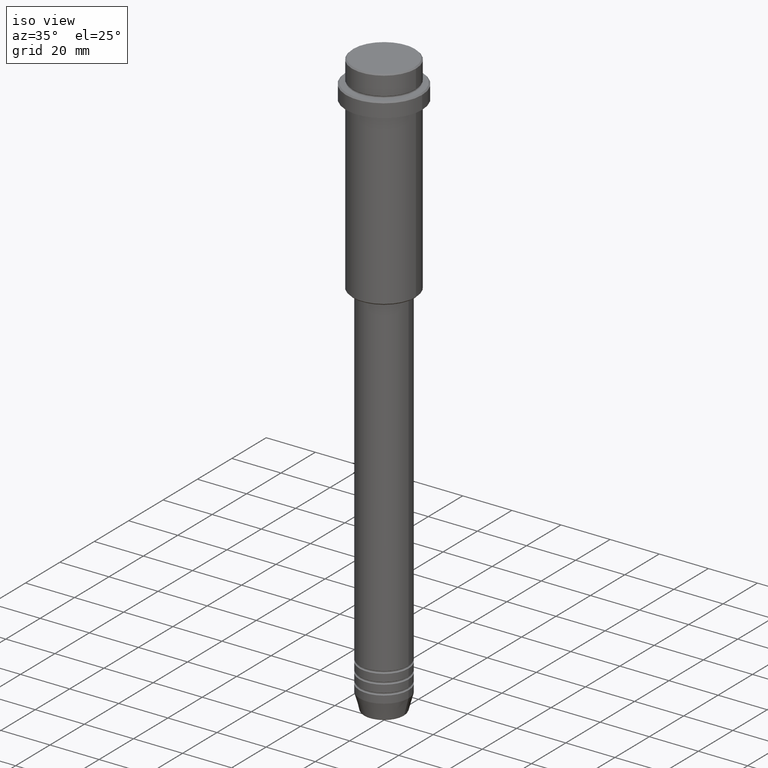
[diagram: clean part render]
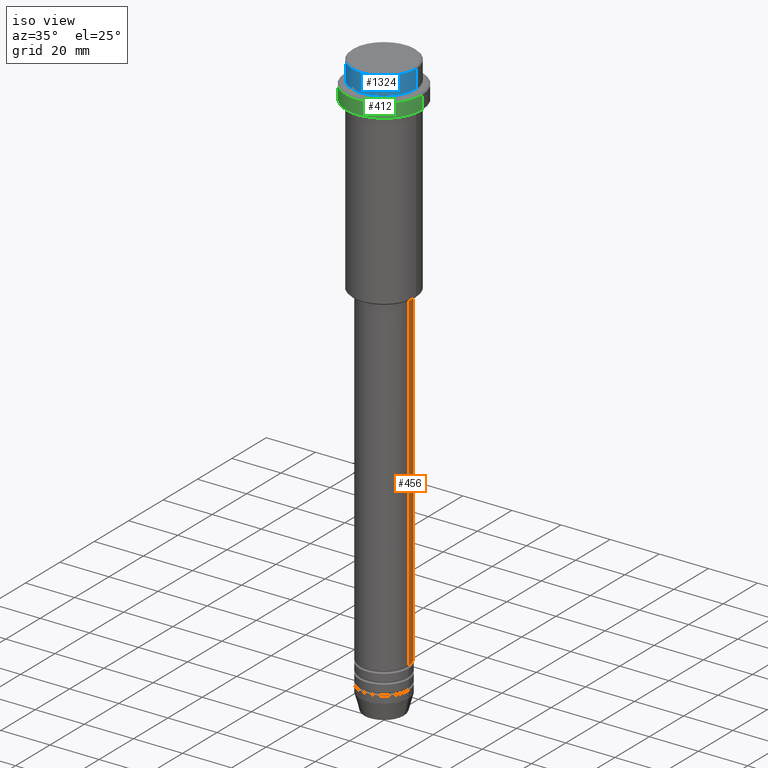
[diagram: same view with three faces highlighted in distinct colors, each labeled with its STEP entity id]
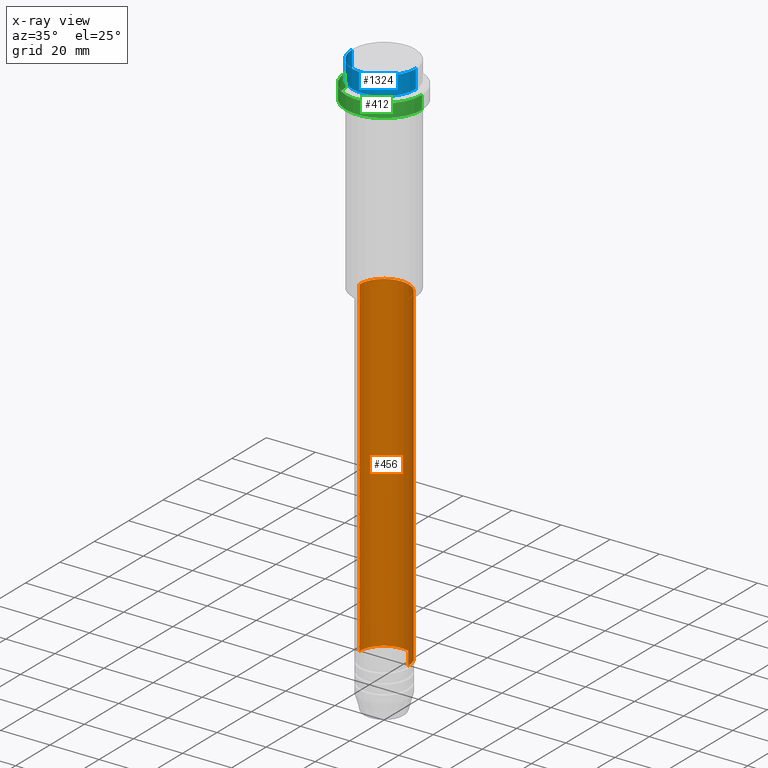
[diagram: x-ray of the same camera — body ghosted, the three highlighted faces saturated]
A machine part, iso view with three faces highlighted in distinct colors.
The next image is the same camera in x-ray (body ghosted, the three faces saturated) — at least one of them is partly hidden behind the body in this view.
Their STEP definitions:

[orange] entity #456 — the highlighted cylindrical surface (edge-blend (fillet) strip) has radius 10 mm, axis along (-0, -0, 1).
#3 = CARTESIAN_POINT ( 'NONE',  ( 0.000000000000000000, 0.000000000000000000, 0.000000000000000000 ) ) ;
#43 = AXIS2_PLACEMENT_3D ( 'NONE', #303, #1411, #652 ) ;
#77 = CARTESIAN_POINT ( 'NONE',  ( 10.00000000000000178, 0.000000000000000000, -86.00000000000000000 ) ) ;
#181 = AXIS2_PLACEMENT_3D ( 'NONE', #592, #1271, #496 ) ;
#183 = LINE ( 'NONE', #1033, #1146 ) ;
#211 = CARTESIAN_POINT ( 'NONE',  ( -10.00000000000000178, 1.224646799147353454E-15, 0.000000000000000000 ) ) ;
#229 = AXIS2_PLACEMENT_3D ( 'NONE', #3, #425, #1312 ) ;
#303 = CARTESIAN_POINT ( 'NONE',  ( 0.000000000000000000, 0.000000000000000000, -220.9999999999998863 ) ) ;
#325 = EDGE_LOOP ( 'NONE', ( #1345, #423, #1259, #827 ) ) ;
#350 = EDGE_CURVE ( 'NONE', #494, #902, #1047, .T. ) ;
#354 = CIRCLE ( 'NONE', #181, 10.00000000000000178 ) ;
#362 = DIRECTION ( 'NONE',  ( -0.000000000000000000, -0.000000000000000000, 1.000000000000000000 ) ) ;
#423 = ORIENTED_EDGE ( 'NONE', *, *, #1233, .T. ) ;
#425 = DIRECTION ( 'NONE',  ( -0.000000000000000000, -0.000000000000000000, 1.000000000000000000 ) ) ;
#456 = ADVANCED_FACE ( 'NONE', ( #752 ), #977, .T. ) ;
#484 = CARTESIAN_POINT ( 'NONE',  ( -10.00000000000000000, 1.224646799147353256E-15, -220.9999999999998863 ) ) ;
#494 = VERTEX_POINT ( 'NONE', #535 ) ;
#496 = DIRECTION ( 'NONE',  ( 1.000000000000000000, 0.000000000000000000, 0.000000000000000000 ) ) ;
#535 = CARTESIAN_POINT ( 'NONE',  ( 10.00000000000000000, 0.000000000000000000, -220.9999999999998863 ) ) ;
#592 = CARTESIAN_POINT ( 'NONE',  ( 0.000000000000000000, 0.000000000000000000, -86.00000000000000000 ) ) ;
#652 = DIRECTION ( 'NONE',  ( 1.000000000000000000, 0.000000000000000000, 0.000000000000000000 ) ) ;
#661 = LINE ( 'NONE', #211, #1196 ) ;
#752 = FACE_OUTER_BOUND ( 'NONE', #325, .T. ) ;
#827 = ORIENTED_EDGE ( 'NONE', *, *, #1335, .F. ) ;
#902 = VERTEX_POINT ( 'NONE', #484 ) ;
#906 = VERTEX_POINT ( 'NONE', #77 ) ;
#977 = CYLINDRICAL_SURFACE ( 'NONE', #229, 10.00000000000000178 ) ;
#1026 = VERTEX_POINT ( 'NONE', #1303 ) ;
#1033 = CARTESIAN_POINT ( 'NONE',  ( 10.00000000000000178, 0.000000000000000000, 0.000000000000000000 ) ) ;
#1047 = CIRCLE ( 'NONE', #43, 10.00000000000000000 ) ;
#1108 = DIRECTION ( 'NONE',  ( -0.000000000000000000, -0.000000000000000000, 1.000000000000000000 ) ) ;
#1146 = VECTOR ( 'NONE', #362, 1000.000000000000000 ) ;
#1196 = VECTOR ( 'NONE', #1108, 1000.000000000000000 ) ;
#1233 = EDGE_CURVE ( 'NONE', #902, #1026, #661, .T. ) ;
#1259 = ORIENTED_EDGE ( 'NONE', *, *, #1374, .F. ) ;
#1271 = DIRECTION ( 'NONE',  ( -0.000000000000000000, -0.000000000000000000, 1.000000000000000000 ) ) ;
#1303 = CARTESIAN_POINT ( 'NONE',  ( -10.00000000000000178, 1.224646799147353454E-15, -86.00000000000000000 ) ) ;
#1312 = DIRECTION ( 'NONE',  ( 1.000000000000000000, 0.000000000000000000, 0.000000000000000000 ) ) ;
#1335 = EDGE_CURVE ( 'NONE', #494, #906, #183, .T. ) ;
#1345 = ORIENTED_EDGE ( 'NONE', *, *, #350, .T. ) ;
#1374 = EDGE_CURVE ( 'NONE', #906, #1026, #354, .T. ) ;
#1411 = DIRECTION ( 'NONE',  ( -0.000000000000000000, -0.000000000000000000, 1.000000000000000000 ) ) ;

[blue] entity #1324 — the highlighted cylindrical surface (partial cylindrical patch) has radius 13 mm, axis along (-0, -0, 1).
#11 = VERTEX_POINT ( 'NONE', #1137 ) ;
#39 = VERTEX_POINT ( 'NONE', #380 ) ;
#56 = CYLINDRICAL_SURFACE ( 'NONE', #546, 12.99999999999999822 ) ;
#69 = VECTOR ( 'NONE', #826, 1000.000000000000000 ) ;
#115 = ORIENTED_EDGE ( 'NONE', *, *, #481, .T. ) ;
#154 = LINE ( 'NONE', #886, #1125 ) ;
#194 = CARTESIAN_POINT ( 'NONE',  ( 0.000000000000000000, 0.000000000000000000, -0.5000000000000038858 ) ) ;
#255 = VERTEX_POINT ( 'NONE', #909 ) ;
#257 = FACE_OUTER_BOUND ( 'NONE', #643, .T. ) ;
#259 = EDGE_CURVE ( 'NONE', #39, #364, #154, .T. ) ;
#287 = AXIS2_PLACEMENT_3D ( 'NONE', #194, #302, #954 ) ;
#302 = DIRECTION ( 'NONE',  ( 0.000000000000000000, 0.000000000000000000, -1.000000000000000000 ) ) ;
#338 = DIRECTION ( 'NONE',  ( -0.000000000000000000, -0.000000000000000000, 1.000000000000000000 ) ) ;
#364 = VERTEX_POINT ( 'NONE', #1299 ) ;
#380 = CARTESIAN_POINT ( 'NONE',  ( 12.99999999999999822, 0.000000000000000000, -7.999999999999998224 ) ) ;
#443 = EDGE_CURVE ( 'NONE', #255, #39, #488, .T. ) ;
#481 = EDGE_CURVE ( 'NONE', #364, #11, #1172, .T. ) ;
#488 = CIRCLE ( 'NONE', #515, 12.99999999999999822 ) ;
#490 = DIRECTION ( 'NONE',  ( 1.000000000000000000, 0.000000000000000000, 0.000000000000000000 ) ) ;
#515 = AXIS2_PLACEMENT_3D ( 'NONE', #878, #1322, #872 ) ;
#546 = AXIS2_PLACEMENT_3D ( 'NONE', #586, #1251, #490 ) ;
#579 = ORIENTED_EDGE ( 'NONE', *, *, #914, .F. ) ;
#586 = CARTESIAN_POINT ( 'NONE',  ( 0.000000000000000000, 0.000000000000000000, 0.000000000000000000 ) ) ;
#643 = EDGE_LOOP ( 'NONE', ( #579, #1046, #1392, #115 ) ) ;
#826 = DIRECTION ( 'NONE',  ( -0.000000000000000000, -0.000000000000000000, 1.000000000000000000 ) ) ;
#872 = DIRECTION ( 'NONE',  ( 1.000000000000000000, 0.000000000000000000, 0.000000000000000000 ) ) ;
#878 = CARTESIAN_POINT ( 'NONE',  ( 0.000000000000000000, 0.000000000000000000, -7.999999999999998224 ) ) ;
#886 = CARTESIAN_POINT ( 'NONE',  ( 12.99999999999999822, 0.000000000000000000, 0.000000000000000000 ) ) ;
#909 = CARTESIAN_POINT ( 'NONE',  ( -12.99999999999999822, 1.592040838891558898E-15, -7.999999999999998224 ) ) ;
#914 = EDGE_CURVE ( 'NONE', #255, #11, #1273, .T. ) ;
#928 = CARTESIAN_POINT ( 'NONE',  ( -12.99999999999999822, 1.592040838891558898E-15, 0.000000000000000000 ) ) ;
#954 = DIRECTION ( 'NONE',  ( 1.000000000000000000, 0.000000000000000000, 0.000000000000000000 ) ) ;
#1046 = ORIENTED_EDGE ( 'NONE', *, *, #443, .T. ) ;
#1125 = VECTOR ( 'NONE', #338, 1000.000000000000000 ) ;
#1137 = CARTESIAN_POINT ( 'NONE',  ( -12.99999999999999822, 1.592040838891558898E-15, -0.5000000000000038858 ) ) ;
#1172 = CIRCLE ( 'NONE', #287, 12.99999999999999822 ) ;
#1251 = DIRECTION ( 'NONE',  ( -0.000000000000000000, -0.000000000000000000, 1.000000000000000000 ) ) ;
#1273 = LINE ( 'NONE', #928, #69 ) ;
#1299 = CARTESIAN_POINT ( 'NONE',  ( 12.99999999999999822, 0.000000000000000000, -0.5000000000000038858 ) ) ;
#1322 = DIRECTION ( 'NONE',  ( -0.000000000000000000, -0.000000000000000000, 1.000000000000000000 ) ) ;
#1324 = ADVANCED_FACE ( 'NONE', ( #257 ), #56, .T. ) ;
#1392 = ORIENTED_EDGE ( 'NONE', *, *, #259, .T. ) ;

[green] entity #412 — the highlighted cylindrical surface (partial cylindrical patch) has radius 15.5 mm, axis along (-0, -0, 1).
#17 = ORIENTED_EDGE ( 'NONE', *, *, #1132, .T. ) ;
#60 = DIRECTION ( 'NONE',  ( -0.000000000000000000, -0.000000000000000000, 1.000000000000000000 ) ) ;
#66 = VECTOR ( 'NONE', #60, 1000.000000000000000 ) ;
#138 = AXIS2_PLACEMENT_3D ( 'NONE', #900, #1346, #860 ) ;
#159 = CYLINDRICAL_SURFACE ( 'NONE', #422, 15.50000000000000000 ) ;
#161 = LINE ( 'NONE', #182, #904 ) ;
#178 = CIRCLE ( 'NONE', #138, 15.50000000000000000 ) ;
#182 = CARTESIAN_POINT ( 'NONE',  ( 15.50000000000000000, 0.000000000000000000, 0.000000000000000000 ) ) ;
#192 = DIRECTION ( 'NONE',  ( 1.000000000000000000, 0.000000000000000000, 0.000000000000000000 ) ) ;
#212 = CARTESIAN_POINT ( 'NONE',  ( -15.50000000000000000, 1.898202538678397557E-15, -15.00000000000000178 ) ) ;
#311 = DIRECTION ( 'NONE',  ( -0.000000000000000000, -0.000000000000000000, 1.000000000000000000 ) ) ;
#340 = CARTESIAN_POINT ( 'NONE',  ( -15.50000000000000000, 1.898202538678397557E-15, -9.500000000000040856 ) ) ;
#367 = CARTESIAN_POINT ( 'NONE',  ( 0.000000000000000000, 0.000000000000000000, 0.000000000000000000 ) ) ;
#412 = ADVANCED_FACE ( 'NONE', ( #918 ), #159, .T. ) ;
#422 = AXIS2_PLACEMENT_3D ( 'NONE', #367, #311, #192 ) ;
#558 = CARTESIAN_POINT ( 'NONE',  ( 15.50000000000000000, 0.000000000000000000, -9.500000000000040856 ) ) ;
#568 = CIRCLE ( 'NONE', #1373, 15.50000000000000000 ) ;
#577 = ORIENTED_EDGE ( 'NONE', *, *, #842, .T. ) ;
#596 = LINE ( 'NONE', #1042, #66 ) ;
#604 = VERTEX_POINT ( 'NONE', #1342 ) ;
#606 = DIRECTION ( 'NONE',  ( -0.000000000000000000, -0.000000000000000000, 1.000000000000000000 ) ) ;
#618 = DIRECTION ( 'NONE',  ( 0.000000000000000000, 0.000000000000000000, -1.000000000000000000 ) ) ;
#669 = EDGE_LOOP ( 'NONE', ( #1094, #17, #692, #577 ) ) ;
#673 = EDGE_CURVE ( 'NONE', #684, #1004, #596, .T. ) ;
#684 = VERTEX_POINT ( 'NONE', #212 ) ;
#692 = ORIENTED_EDGE ( 'NONE', *, *, #757, .T. ) ;
#724 = CARTESIAN_POINT ( 'NONE',  ( 0.000000000000000000, 0.000000000000000000, -9.500000000000040856 ) ) ;
#757 = EDGE_CURVE ( 'NONE', #604, #976, #161, .T. ) ;
#842 = EDGE_CURVE ( 'NONE', #976, #1004, #568, .T. ) ;
#860 = DIRECTION ( 'NONE',  ( 1.000000000000000000, 0.000000000000000000, 0.000000000000000000 ) ) ;
#900 = CARTESIAN_POINT ( 'NONE',  ( 0.000000000000000000, 0.000000000000000000, -15.00000000000000178 ) ) ;
#904 = VECTOR ( 'NONE', #606, 1000.000000000000000 ) ;
#918 = FACE_OUTER_BOUND ( 'NONE', #669, .T. ) ;
#948 = DIRECTION ( 'NONE',  ( 1.000000000000000000, 0.000000000000000000, 0.000000000000000000 ) ) ;
#976 = VERTEX_POINT ( 'NONE', #558 ) ;
#1004 = VERTEX_POINT ( 'NONE', #340 ) ;
#1042 = CARTESIAN_POINT ( 'NONE',  ( -15.50000000000000000, 1.898202538678397557E-15, 0.000000000000000000 ) ) ;
#1094 = ORIENTED_EDGE ( 'NONE', *, *, #673, .F. ) ;
#1132 = EDGE_CURVE ( 'NONE', #684, #604, #178, .T. ) ;
#1342 = CARTESIAN_POINT ( 'NONE',  ( 15.50000000000000000, 0.000000000000000000, -15.00000000000000178 ) ) ;
#1346 = DIRECTION ( 'NONE',  ( -0.000000000000000000, -0.000000000000000000, 1.000000000000000000 ) ) ;
#1373 = AXIS2_PLACEMENT_3D ( 'NONE', #724, #618, #948 ) ;